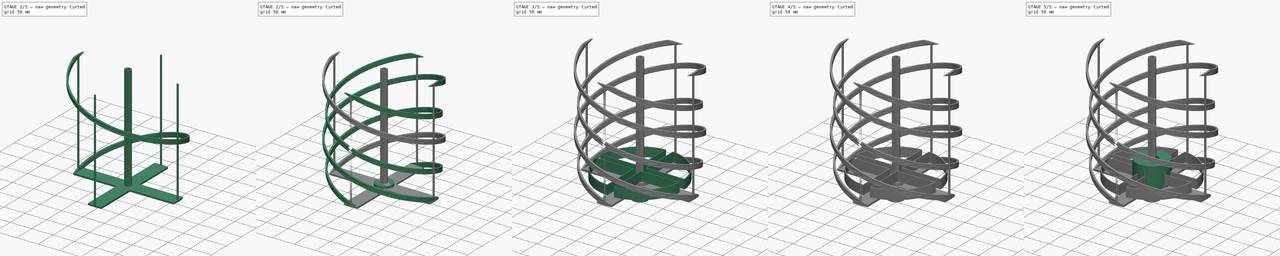
[diagram: build sequence overview — one tinted view per stage of 5, left to right]
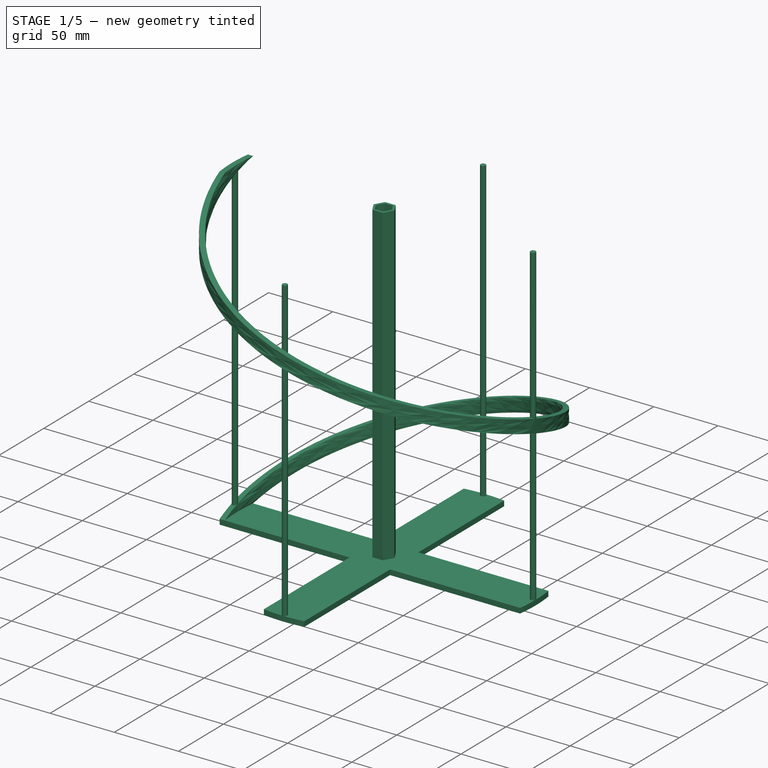
[diagram: stage 1 of 5 — iso view after this stage's code; geometry added in this stage tinted green]
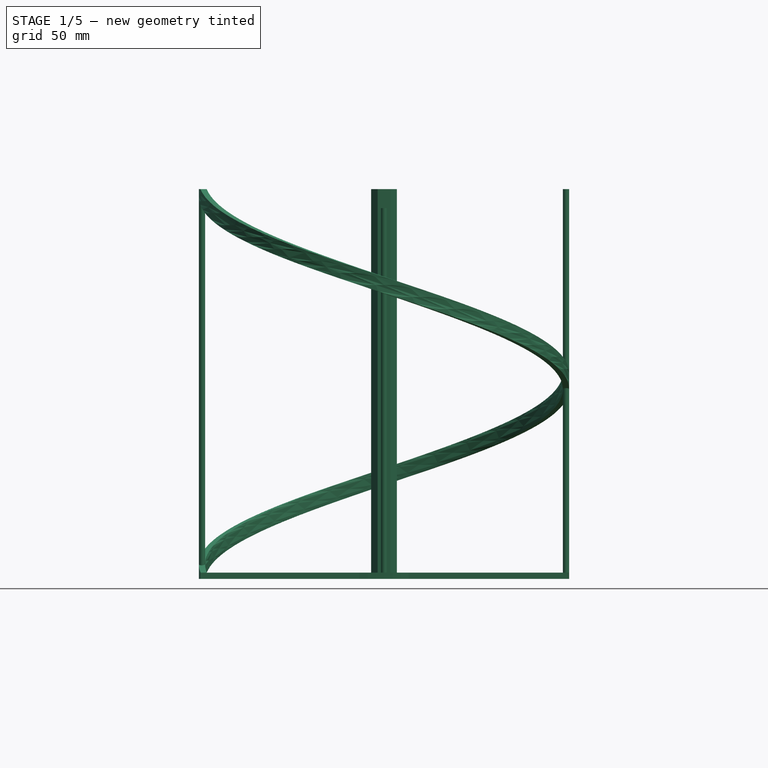
[diagram: stage 1 of 5 — front view after this stage's code; geometry added in this stage tinted green]
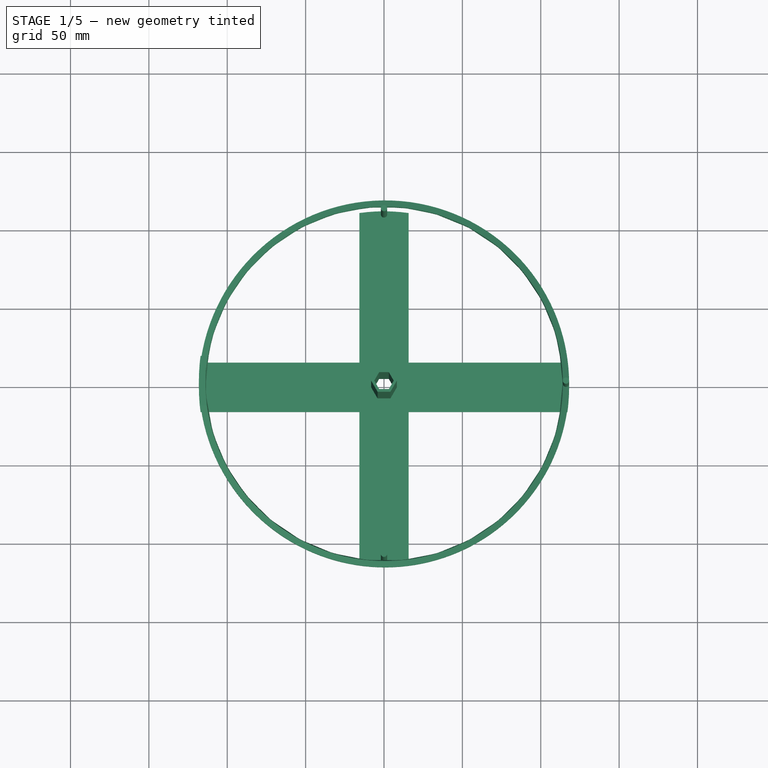
[diagram: stage 1 of 5 — top view after this stage's code; geometry added in this stage tinted green]
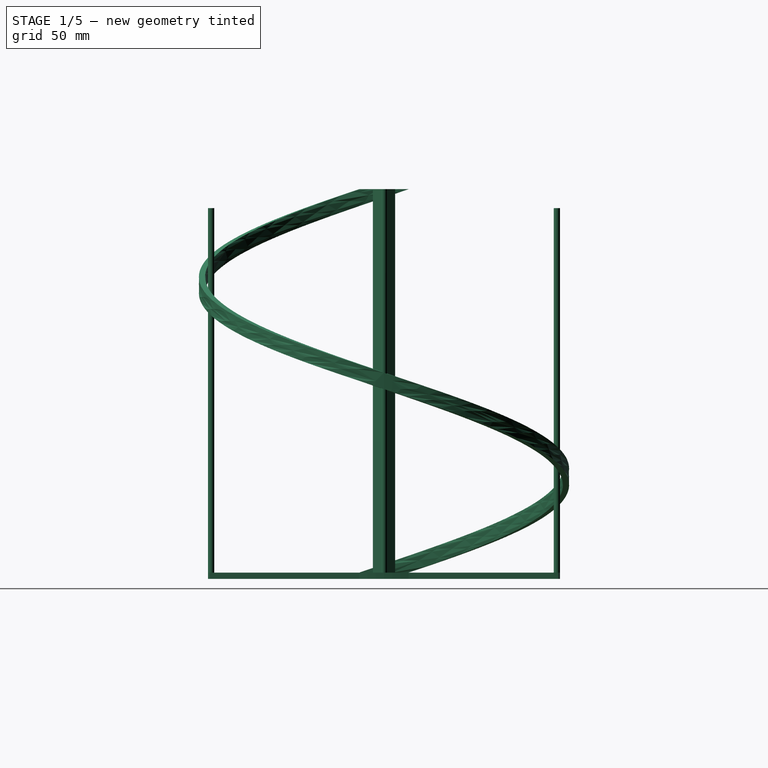
[diagram: stage 1 of 5 — right view after this stage's code; geometry added in this stage tinted green]
FCSTD DOCUMENT  (FreeCAD 0.21R33771 (Git))
Label: QfhAntenna2m
License: All rights reserved
LicenseURL: http://en.wikipedia.org/wiki/All_rights_reserved
objects: Sketcher::SketchObject×13, PartDesign::Pad×8, PartDesign::PolarPattern×3, PartDesign::Pocket×3, PartDesign::Body×3, Spreadsheet::Sheet×2, PartDesign::Fillet×2, PartDesign::Chamfer×2, App::DocumentObjectGroup×2, PartDesign::AdditiveHelix×2, PartDesign::CoordinateSystem×1
note: 54 computed .brp shape members not serialized (recipe doc carries the construction recipe); baked Part::Feature solids carry a one-line shape summary decoded from their .brp

FEATURE [PartDesign::Body] Body008  label="Fork"
  Group = -> [Sketch014,Sketch015,Pad010,Pad011,PolarPattern,Sketch017,Fillet,LCS_7,Pad020,Chamfer,Fillet001,Chamfer001,Sketch036,Pocket004]
  Origin = -> Origin008
  Placement = pos=(0,-98.4,2.2e-14) rot=(-1,0,0;1.5708rad)
  Tip = -> Pocket004
FEATURE [App::DocumentObjectGroup] Group002  label="Support"
  Group = -> [Body008,Spreadsheet001,Body010]
FEATURE [Sketcher::SketchObject] Sketch
  FullyConstrained = true
  MapMode = 5
  Support = -> [XY_Plane]
  expr: Constraints[1] = Spreadsheet.helixBase
  expr: Constraints[25] = Spreadsheet.helixBase
  expr: Constraints[29] = Spreadsheet.D2Small
  expr: Constraints[4] = Spreadsheet.D1Large
  expr: Constraints[50] = 12.4
  sketch-geometry (19):
    g0: ArcOfCircle CenterX=0 CenterY=0 CenterZ=0 NormalX=0 NormalY=0 NormalZ=1 AngleXU=0 Radius=118.1 StartAngle=3.00792 EndAngle=3.27527
    g1: ArcOfCircle CenterX=0 CenterY=0 CenterZ=0 NormalX=0 NormalY=0 NormalZ=1 AngleXU=0 Radius=118.1 StartAngle=6.14951 EndAngle=6.41686
    g2: ArcOfCircle CenterX=0 CenterY=0 CenterZ=0 NormalX=0 NormalY=0 NormalZ=1 AngleXU=0 Radius=112.3 StartAngle=1.43018 EndAngle=1.71142
    g3: ArcOfCircle CenterX=0 CenterY=0 CenterZ=0 NormalX=0 NormalY=0 NormalZ=1 AngleXU=0 Radius=112.3 StartAngle=4.57177 EndAngle=4.85301
    g4: LineSegment StartX=-117.046 StartY=15.7397 StartZ=0 EndX=-15.7397 EndY=15.7397 EndZ=0
    g5: LineSegment StartX=-15.7397 StartY=15.7397 StartZ=0 EndX=-15.7397 EndY=111.192 EndZ=0
    g6: LineSegment StartX=15.7397 StartY=111.192 StartZ=0 EndX=15.7397 EndY=15.7397 EndZ=0
    g7: LineSegment StartX=15.7397 StartY=15.7397 StartZ=0 EndX=117.046 EndY=15.7397 EndZ=0
    g8: LineSegment StartX=117.046 StartY=-15.7397 StartZ=0 EndX=15.7397 EndY=-15.7397 EndZ=0
    g9: LineSegment StartX=15.7397 StartY=-15.7397 StartZ=0 EndX=15.7397 EndY=-111.192 EndZ=0
    g10: LineSegment StartX=-117.046 StartY=-15.7397 StartZ=0 EndX=-15.7397 EndY=-15.7397 EndZ=0
    g11: LineSegment StartX=-15.7397 StartY=-15.7397 StartZ=0 EndX=-15.7397 EndY=-111.192 EndZ=0
    g12: LineSegment StartX=3.1 StartY=-5.36936 StartZ=0 EndX=6.2 EndY=2e-15 EndZ=0
    g13: LineSegment StartX=6.2 StartY=1.5e-15 StartZ=0 EndX=3.1 EndY=5.36936 EndZ=0
    g14: LineSegment StartX=3.1 StartY=5.36936 StartZ=0 EndX=-3.1 EndY=5.36936 EndZ=0
    g15: LineSegment StartX=-3.1 StartY=5.36936 StartZ=0 EndX=-6.2 EndY=2e-16 EndZ=0
    g16: LineSegment StartX=-6.2 StartY=3e-16 StartZ=0 EndX=-3.1 EndY=-5.36936 EndZ=0
    g17: LineSegment StartX=-3.1 StartY=-5.36936 StartZ=0 EndX=3.1 EndY=-5.36936 EndZ=0
    g18: Circle CenterX=0 CenterY=0 CenterZ=0 NormalX=0 NormalY=0 NormalZ=1 AngleXU=0 Radius=6.2
  constraints (48):
    c: Coincident(g0,g-1)
    c: DistanceY(g0,g0) = 31.4795
    c: Horizontal(g0,g1)
    c: Symmetric(g0,g1,g-2)
    c: Distance(g0,g1) = 236.2
    c: Coincident(g0,g1)
    c: Coincident(g2,g0)
    c: Coincident(g3,g0)
    c: Symmetric(g2,g3,g-1)
    c: Vertical(g3,g2)
    c: Coincident(g4,g0)
    c: Horizontal(g4)
    c: Coincident(g5,g4)
    c: Coincident(g5,g2)
    c: Coincident(g6,g2)
    c: Vertical(g6)
    c: Coincident(g7,g6)
    c: Coincident(g7,g1)
    c: Coincident(g8,g1)
    c: Coincident(g9,g8)
    c: Coincident(g9,g3)
    c: Vertical(g9)
    c: Coincident(g10,g0)
    c: Coincident(g11,g10)
    c: Coincident(g11,g3)
    c: DistanceX(g2,g2) = 31.4795
    c: Perpendicular(g5,g4)
    c: Perpendicular(g11,g10)
    c: Perpendicular(g8,g9)
    c: Distance(g2,g3) = 224.6
    c: Symmetric(g4,g6,g-2)
    c: Symmetric(g4,g10,g-1)
    c: Coincident(g12,g13)
    c: Coincident(g13,g14)
    c: Coincident(g14,g15)
    c: Coincident(g15,g16)
    c: Coincident(g16,g17)
    c: Coincident(g17,g12)
    c: Equal(g12, g13-g17) x5
    c: PointOnObject(g12,g18)
    c: PointOnObject(g13,g18)
    c: PointOnObject(g14,g18)
    c: PointOnObject(g15,g18)
    c: PointOnObject(g16,g18)
    c: PointOnObject(g17,g18)
    c: Coincident(g18,g0)
    c: Diameter(g18) = 12.4
    c: Horizontal(g17)
FEATURE [PartDesign::Pad] Pad  label="BaseTop"
  Direction = (0,0,1)
  Length = 4
  Length2 = 10
  Profile = -> Sketch
  ReferenceAxis = -> Sketch [N_Axis]
  Type = 0
  expr: Length = Spreadsheet.helixThickness
FEATURE [Sketcher::SketchObject] Sketch046
  ExternalGeometry = -> [Pad]
  FullyConstrained = true
  MapMode = 5
  Placement = pos=(0,0,4) rot=(0,0,1;0rad)
  Support = -> [Pad]
  expr: Constraints[2] = Spreadsheet.D1Large - Spreadsheet.helixThickness
  expr: Constraints[4] = Spreadsheet.helixThickness
  sketch-geometry (16):
    g0: Circle CenterX=-116.1 CenterY=0 CenterZ=0 NormalX=0 NormalY=0 NormalZ=1 AngleXU=0 Radius=2
    g1: Circle CenterX=116.1 CenterY=0 CenterZ=0 NormalX=0 NormalY=0 NormalZ=1 AngleXU=0 Radius=2
    g2: LineSegment StartX=3.1 StartY=5.36936 StartZ=0 EndX=-3.1 EndY=5.36936 EndZ=0
    g3: LineSegment StartX=-3.1 StartY=5.36936 StartZ=0 EndX=-6.2 EndY=-3.01e-14 EndZ=0
    g4: LineSegment StartX=-6.2 StartY=-3.01e-14 StartZ=0 EndX=-3.1 EndY=-5.36936 EndZ=0
    g5: LineSegment StartX=-3.1 StartY=-5.36936 StartZ=0 EndX=3.1 EndY=-5.36936 EndZ=0
    g6: LineSegment StartX=3.1 StartY=-5.36936 StartZ=0 EndX=6.2 EndY=3.02e-14 EndZ=0
    g7: LineSegment StartX=6.2 StartY=3.02e-14 StartZ=0 EndX=3.1 EndY=5.36936 EndZ=0
    g8: Circle CenterX=0 CenterY=0 CenterZ=0 NormalX=0 NormalY=0 NormalZ=1 AngleXU=0 Radius=6.2
    g9: LineSegment StartX=4.1 StartY=7.10141 StartZ=0 EndX=-4.1 EndY=7.10141 EndZ=0
    g10: LineSegment StartX=-4.1 StartY=7.10141 StartZ=0 EndX=-8.2 EndY=-1.4e-15 EndZ=0
    g11: LineSegment StartX=-8.2 StartY=-1.4e-15 StartZ=0 EndX=-4.1 EndY=-7.10141 EndZ=0
    g12: LineSegment StartX=-4.1 StartY=-7.10141 StartZ=0 EndX=4.1 EndY=-7.10141 EndZ=0
    g13: LineSegment StartX=4.1 StartY=-7.10141 StartZ=0 EndX=8.2 EndY=2.2e-15 EndZ=0
    g14: LineSegment StartX=8.2 StartY=2.2e-15 StartZ=0 EndX=4.1 EndY=7.10141 EndZ=0
    g15: Circle CenterX=0 CenterY=0 CenterZ=0 NormalX=0 NormalY=0 NormalZ=1 AngleXU=0 Radius=8.2
  constraints (36):
    c: PointOnObject(g0,g-1)
    c: Symmetric(g0,g1,g-2)
    c: DistanceX(g0,g1) = 232.2
    c: Equal(g1,g0)
    c: Diameter(g1) = 4
    c: Coincident(g2,g3)
    c: Coincident(g3,g4)
    c: Coincident(g4,g5)
    c: Coincident(g5,g6)
    c: Coincident(g6,g7)
    c: Coincident(g7,g2)
    c: Equal(g2, g3-g7) x5
    c: PointOnObject(g2,g8)
    c: PointOnObject(g3,g8)
    c: PointOnObject(g4,g8)
    c: PointOnObject(g5,g8)
    c: PointOnObject(g6,g8)
    c: PointOnObject(g7,g8)
    c: Coincident(g8,g-1)
    c: Coincident(g7,g-3)
    c: Coincident(g9,g10)
    c: Coincident(g10,g11)
    c: Coincident(g11,g12)
    c: Coincident(g12,g13)
    c: Coincident(g13,g14)
    c: Coincident(g14,g9)
    c: Equal(g9, g10-g14) x5
    c: PointOnObject(g9,g15)
    c: PointOnObject(g10,g15)
    c: PointOnObject(g11,g15)
    c: PointOnObject(g12,g15)
    c: PointOnObject(g13,g15)
    c: PointOnObject(g14,g15)
    c: Coincident(g15,g8)
    c: Horizontal(g9)
    c: DistanceX(g5,g12) = 1
FEATURE [PartDesign::Pad] Pad036  label="LargeSupport"
  BaseFeature = -> Pad
  Direction = (0,0,1)
  Length = 244.6
  Length2 = 10
  Profile = -> Sketch046
  ReferenceAxis = -> Sketch046 [N_Axis]
  Type = 0
  expr: Length = Spreadsheet.H1Large - Spreadsheet.helixThickness
FEATURE [Sketcher::SketchObject] Sketch047
  FullyConstrained = true
  MapMode = 5
  Placement = pos=(0,0,4) rot=(0,0,1;0rad)
  Support = -> [Pad036]
  expr: Constraints[2] = Spreadsheet.D2Small - Spreadsheet.helixThickness
  expr: Constraints[4] = Spreadsheet.helixThickness
  sketch-geometry (2):
    g0: Circle CenterX=0 CenterY=110.3 CenterZ=0 NormalX=0 NormalY=0 NormalZ=1 AngleXU=0 Radius=2
    g1: Circle CenterX=0 CenterY=-110.3 CenterZ=0 NormalX=0 NormalY=0 NormalZ=1 AngleXU=0 Radius=2
  constraints (5):
    c: PointOnObject(g0,g-2)
    c: Symmetric(g0,g1,g-1)
    c: DistanceY(g1,g0) = 220.6
    c: Equal(g0,g1)
    c: Diameter(g0) = 4
FEATURE [PartDesign::Pad] Pad037  label="SmallSupport"
  BaseFeature = -> Pad036
  Direction = (0,0,1)
  Length = 232.5
  Length2 = 10
  Profile = -> Sketch047
  ReferenceAxis = -> Sketch047 [N_Axis]
  Type = 0
  expr: Length = Spreadsheet.H2Small - Spreadsheet.helixThickness
FEATURE [Sketcher::SketchObject] Sketch048
  ExternalGeometry = -> [Pad037]
  FullyConstrained = false
  MapMode = 5
  Placement = pos=(0,0,4) rot=(0,0,1;0rad)
  Support = -> [Pad037]
  expr: Constraints[5] = Spreadsheet.helixThickness
  sketch-geometry (4):
    g0: ArcOfCircle CenterX=0 CenterY=0 CenterZ=0 NormalX=0 NormalY=0 NormalZ=1 AngleXU=0 Radius=118.1 StartAngle=3.00792 EndAngle=3.27527
    g1: ArcOfCircle CenterX=24.0841 CenterY=0 CenterZ=0 NormalX=0 NormalY=0 NormalZ=1 AngleXU=0 Radius=138.031 StartAngle=3.02731 EndAngle=3.25587
    g2: LineSegment StartX=-113.046 StartY=15.7397 StartZ=0 EndX=-117.046 EndY=15.7397 EndZ=0
    g3: LineSegment StartX=-117.046 StartY=-15.7397 StartZ=0 EndX=-113.046 EndY=-15.7397 EndZ=0
  constraints (11):
    c: Coincident(g0,g-4)
    c: Coincident(g0,g-3)
    c: PointOnObject(g1,g-1)
    c: PointOnObject(g1,g-5)
    c: PointOnObject(g1,g-6)
    c: DistanceX(g0,g1) = 4
    c: Coincident(g2,g1)
    c: Coincident(g3,g0)
    c: Coincident(g3,g1)
    c: Horizontal(g3)
    c: Coincident(g2,g0)
FEATURE [PartDesign::AdditiveHelix] AdditiveHelix  label="LargeHelixA"
  Angle = 0
  Axis = (1e-16,1e-16,1)
  Base = (0,0,0)
  BaseFeature = -> Pad037
  Growth = 0
  HasBeenEdited = true
  Height = 244.6
  LeftHanded = true
  Mode = 2
  Outside = false
  Pitch = 244.6
  Profile = -> Sketch048
  ReferenceAxis = -> Z_Axis
  Turns = 1
  expr: Height = Spreadsheet.H1Large - Spreadsheet.helixThickness
  expr: Turns = Spreadsheet.turns
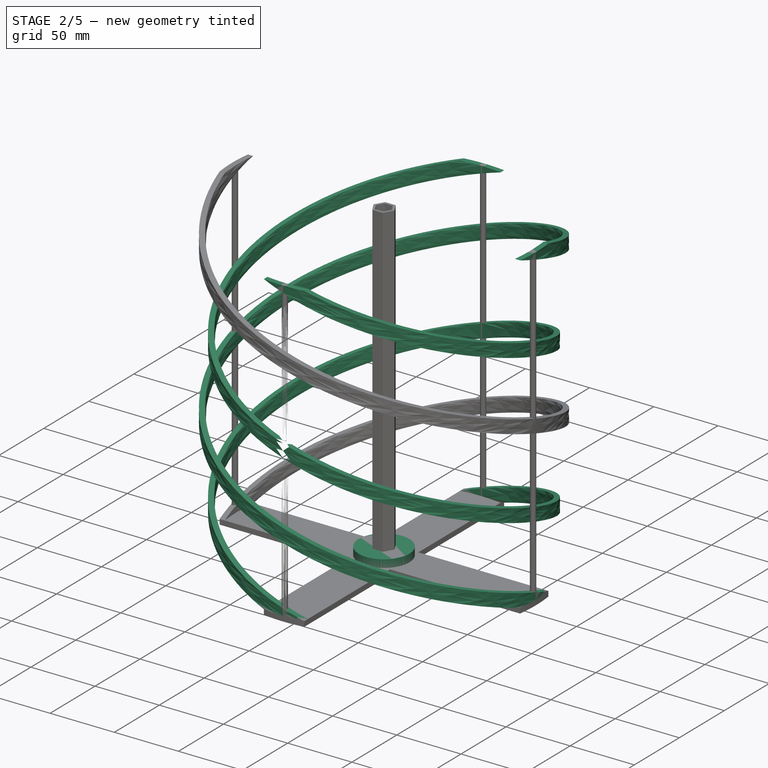
[diagram: stage 2 of 5 — iso view after this stage's code; geometry added in this stage tinted green]
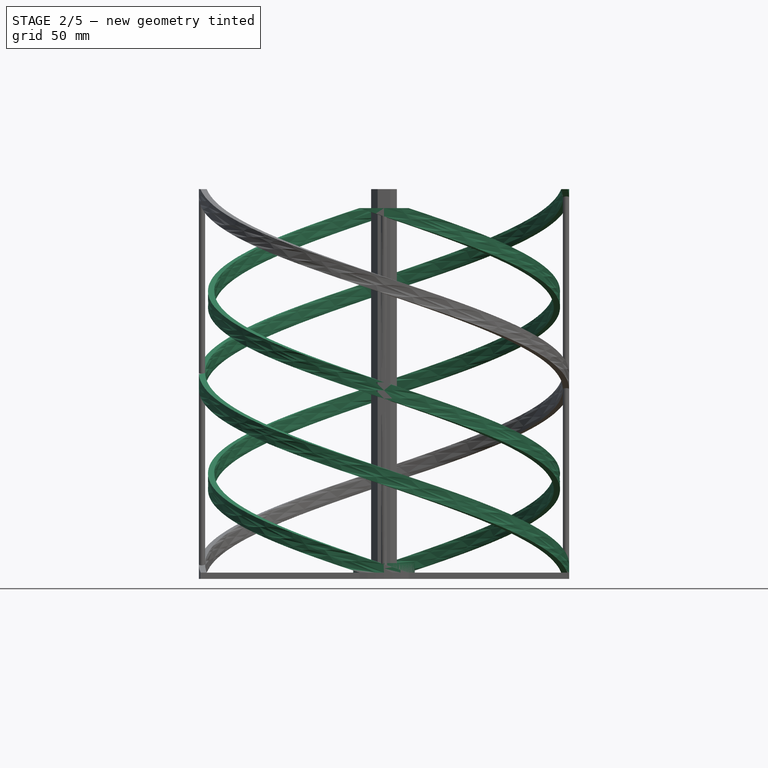
[diagram: stage 2 of 5 — front view after this stage's code; geometry added in this stage tinted green]
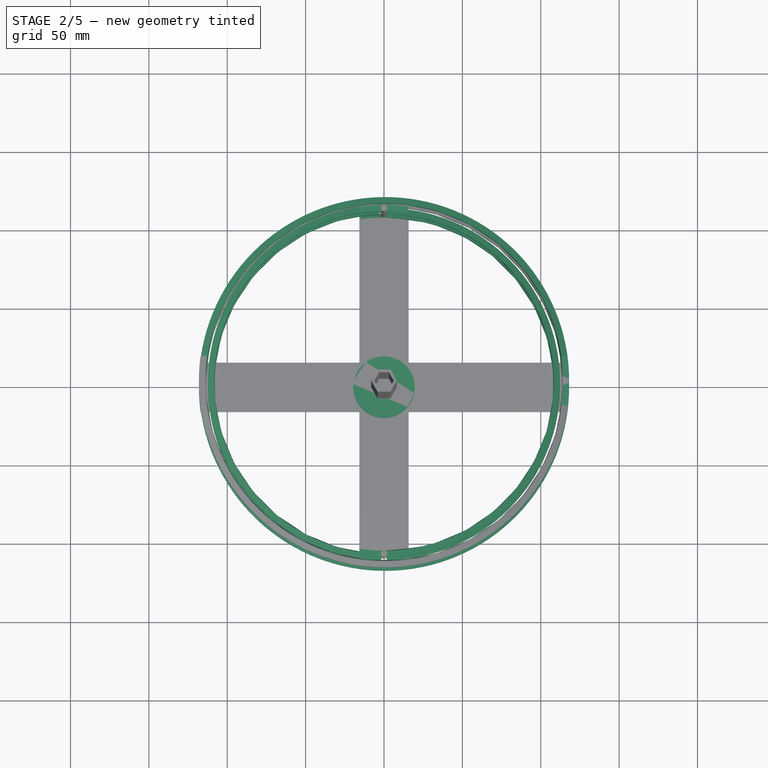
[diagram: stage 2 of 5 — top view after this stage's code; geometry added in this stage tinted green]
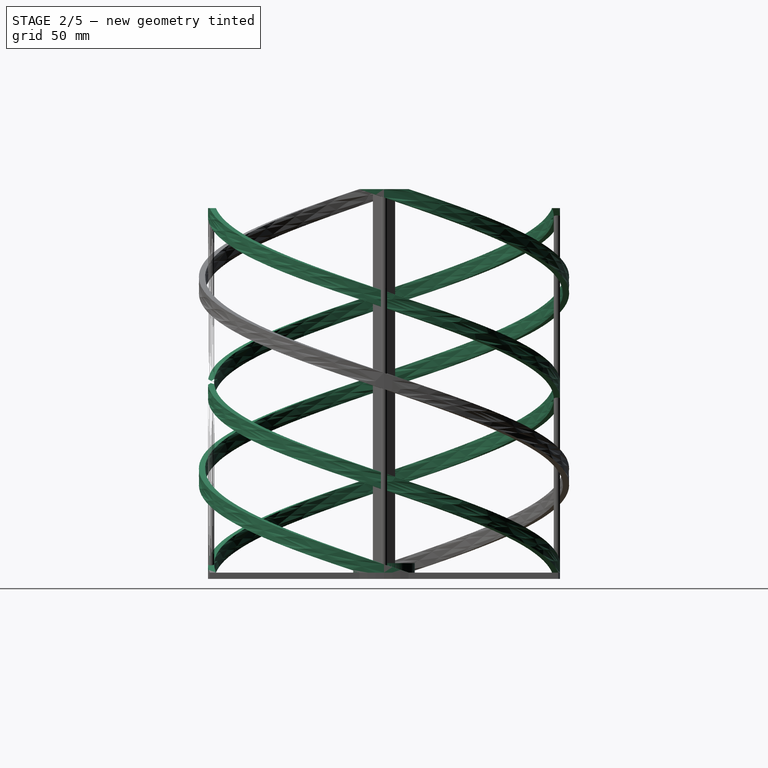
[diagram: stage 2 of 5 — right view after this stage's code; geometry added in this stage tinted green]
FEATURE [Spreadsheet::Sheet] Spreadsheet  label="NumbersForRight"
  cells = B1='Info; C1='https://jcoppens.com/ant/qfh/calc.en.php; A2='#turns; B2(turns)=1; A3='H1; B3(H1Large)=248.6; C3='@145; A4='D1; B4(D1Large)=236.2; A5='H2; B5(H2Small)=236.5; A6='D2; B6(D2Small)=224.6; A7='margin; B7(margin)=0.2; A8='widthFoil; B8(widthFoil)=10; A9='helixThickness; B9(helixThickness)=4; A10='heightSmall; B10(heightSmall)==H1Large - H2Small - helixThickness; C10='Padding to hold small helix between large; A11='radiusCenter; B11(radiusCenter)=6; A12='direction; B12(direction)=0; A13='helixElevation; B13(helixElevation)==atan(H1Large / (pi * D1Large)); A14='helixBase; B14(helixBase)==widthFoil / sin(helixElevation); B15='Calculated; C15='Do not change
FEATURE [Sketcher::SketchObject] Sketch015
  FullyConstrained = true
  MapMode = 5
  Support = -> [XY_Plane008]
  sketch-geometry (1):
    g0: Circle CenterX=0 CenterY=0 CenterZ=0 NormalX=0 NormalY=0 NormalZ=1 AngleXU=0 Radius=19.65
  constraints (2):
    c: Radius(g0) = 19.65
    c: Coincident(g0,g-1)
FEATURE [PartDesign::Pad] Pad010
  Direction = (0,0,1)
  Length = 10
  Length2 = 10
  Profile = -> Sketch015
  ReferenceAxis = -> Sketch015 [N_Axis]
  Type = 0
FEATURE [PartDesign::PolarPattern] PolarPattern001  label="LargeHelixB"
  Angle = 360
  Axis = -> Sketch048 [N_Axis]
  BaseFeature = -> AdditiveHelix
  Occurrences = 2
  Originals = -> [AdditiveHelix]
FEATURE [Sketcher::SketchObject] Sketch049
  ExternalGeometry = -> [PolarPattern001]
  FullyConstrained = true
  MapMode = 5
  Placement = pos=(0,0,4) rot=(0,0,1;0rad)
  Support = -> [PolarPattern001]
  expr: Constraints[5] = Spreadsheet.helixThickness
  sketch-geometry (4):
    g0: ArcOfCircle CenterX=0 CenterY=0 CenterZ=0 NormalX=0 NormalY=0 NormalZ=1 AngleXU=0 Radius=112.3 StartAngle=4.57177 EndAngle=4.85301
    g1: ArcOfCircle CenterX=0 CenterY=0 CenterZ=0 NormalX=0 NormalY=0 NormalZ=1 AngleXU=0 Radius=108.341 StartAngle=4.56659 EndAngle=4.85818
    g2: LineSegment StartX=15.7397 StartY=-111.192 StartZ=0 EndX=15.7397 EndY=-107.192 EndZ=0
    g3: LineSegment StartX=-15.7397 StartY=-111.192 StartZ=0 EndX=-15.7397 EndY=-107.192 EndZ=0
  constraints (11):
    c: Coincident(g0,g-5)
    c: Coincident(g0,g-5)
    c: Coincident(g1,g0)
    c: PointOnObject(g1,g-3)
    c: PointOnObject(g1,g-4)
    c: DistanceY(g0,g1) = 4
    c: Coincident(g2,g0)
    c: Coincident(g2,g1)
    c: Coincident(g3,g0)
    c: Coincident(g3,g1)
    c: Vertical(g3)
FEATURE [PartDesign::AdditiveHelix] AdditiveHelix001  label="SmallHelixA"
  Angle = 0
  Axis = (1e-16,1e-16,1)
  Base = (0,0,0)
  BaseFeature = -> PolarPattern001
  Growth = 0
  HasBeenEdited = true
  Height = 232.5
  LeftHanded = true
  Mode = 2
  Outside = false
  Pitch = 232.5
  Profile = -> Sketch049
  ReferenceAxis = -> Z_Axis
  Turns = 1
  expr: Height = Spreadsheet.H2Small - Spreadsheet.helixThickness
  expr: Turns = Spreadsheet.turns
FEATURE [PartDesign::PolarPattern] PolarPattern002
  Angle = 360
  Axis = -> Sketch049 [N_Axis]
  BaseFeature = -> AdditiveHelix001
  Occurrences = 2
  Originals = -> [AdditiveHelix001]
FEATURE [PartDesign::Body] Body  label="HelixLargeSupport"
  Group = -> [Sketch,Pad,Sketch046,Pad036,Sketch047,Pad037,Sketch048,AdditiveHelix,PolarPattern001,Sketch049,AdditiveHelix001,PolarPattern002]
  Origin = -> Origin
  Tip = -> PolarPattern002
FEATURE [App::DocumentObjectGroup] Group  label="Antenna"
  Group = -> [Body]
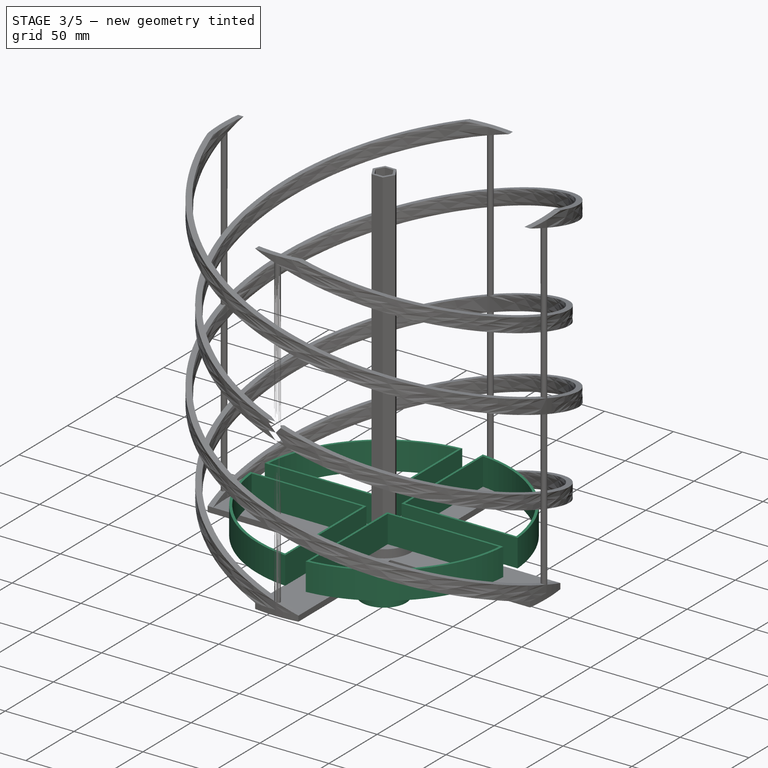
[diagram: stage 3 of 5 — iso view after this stage's code; geometry added in this stage tinted green]
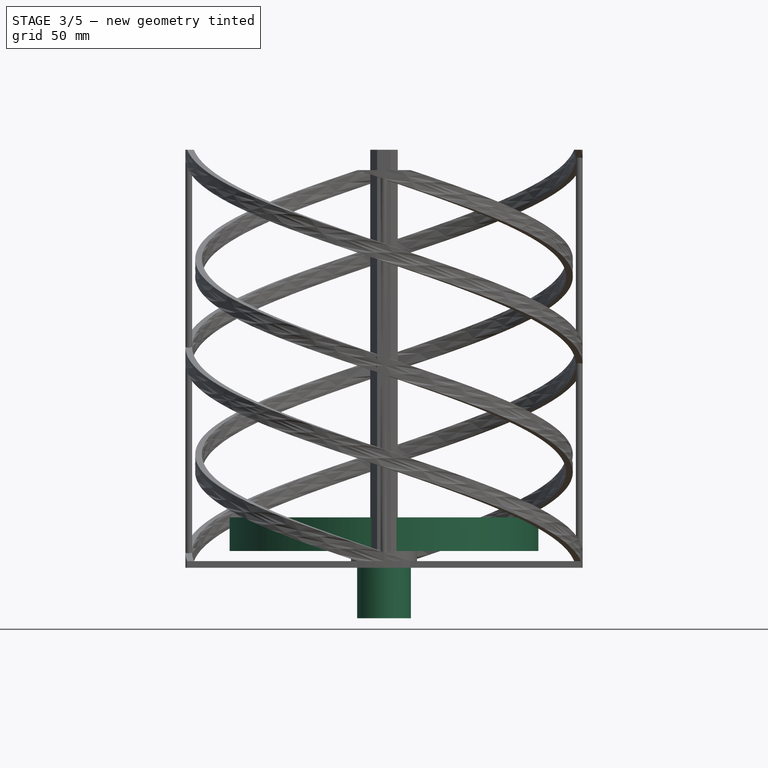
[diagram: stage 3 of 5 — front view after this stage's code; geometry added in this stage tinted green]
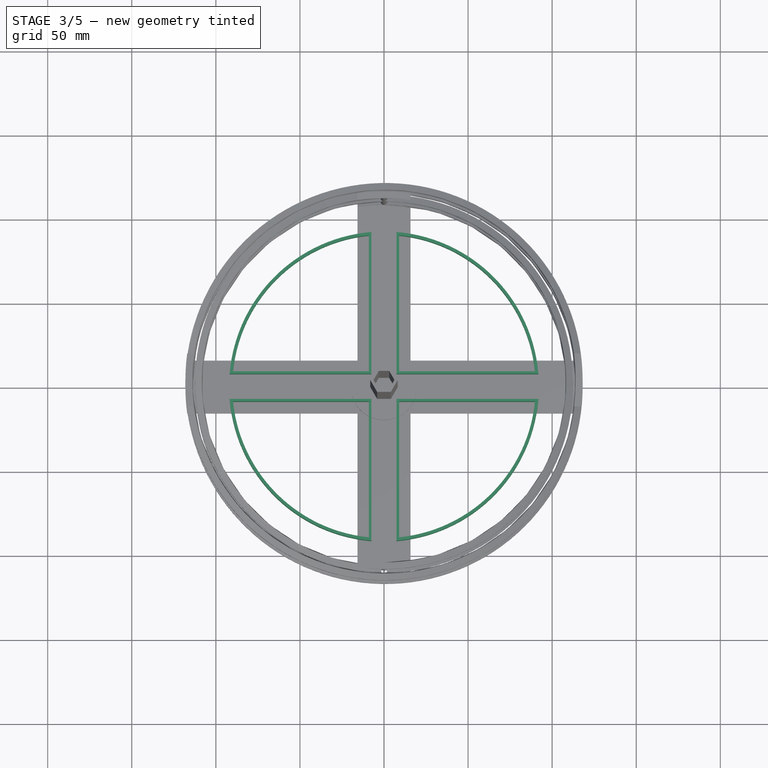
[diagram: stage 3 of 5 — top view after this stage's code; geometry added in this stage tinted green]
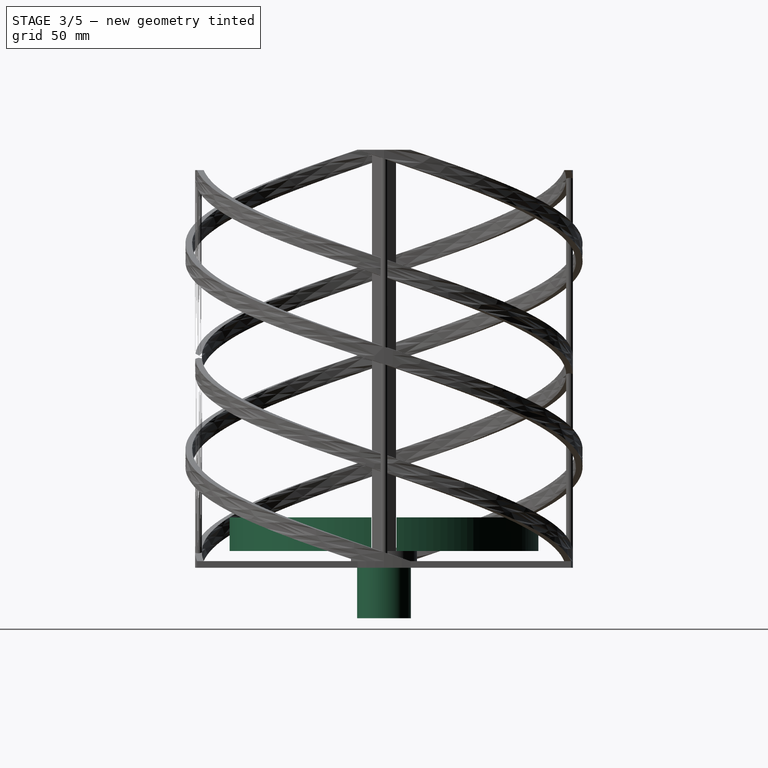
[diagram: stage 3 of 5 — right view after this stage's code; geometry added in this stage tinted green]
FEATURE [Sketcher::SketchObject] Sketch014
  FullyConstrained = true
  MapMode = 5
  Placement = pos=(0,0,10) rot=(0,0,1;0rad)
  Support = -> [Pad010]
  expr: Constraints[11] = Spreadsheet.widthFoil * sqrt(2) + 4 * Spreadsheet.margin
  expr: Constraints[1] = Spreadsheet.D2Small / 2 - 2 * Spreadsheet.widthFoil - Spreadsheet.margin
  expr: Constraints[24] = Spreadsheet.widthFoil * sqrt(2) + 4 * Spreadsheet.margin
  sketch-geometry (11):
    g0: Circle CenterX=0 CenterY=0 CenterZ=0 NormalX=0 NormalY=0 NormalZ=1 AngleXU=0 Radius=92.1
    g1: LineSegment StartX=-7.47107 StartY=91.7965 StartZ=0 EndX=-7.47107 EndY=-91.7965 EndZ=0
    g2: LineSegment StartX=7.47107 StartY=91.7965 StartZ=0 EndX=7.47107 EndY=-91.7965 EndZ=0
    g3: LineSegment StartX=-91.7965 StartY=7.47107 StartZ=0 EndX=91.7965 EndY=7.47107 EndZ=0
    g4: LineSegment StartX=-91.7965 StartY=-7.47107 StartZ=0 EndX=91.7965 EndY=-7.47107 EndZ=0
    g5: ArcOfCircle CenterX=0 CenterY=0 CenterZ=0 NormalX=0 NormalY=0 NormalZ=1 AngleXU=0 Radius=92.1 StartAngle=0.0812083 EndAngle=1.48959
    g6: LineSegment StartX=7.47107 StartY=91.7965 StartZ=0 EndX=7.47107 EndY=7.47107 EndZ=0
    g7: LineSegment StartX=7.47107 StartY=7.47107 StartZ=0 EndX=91.7965 EndY=7.47107 EndZ=0
    g8: ArcOfCircle CenterX=0 CenterY=0 CenterZ=0 NormalX=0 NormalY=0 NormalZ=1 AngleXU=0 Radius=90.2435 StartAngle=0.099574 EndAngle=1.47122
    g9: LineSegment StartX=8.97107 StartY=89.7965 StartZ=0 EndX=8.97107 EndY=8.97107 EndZ=0
    g10: LineSegment StartX=8.97107 StartY=8.97107 StartZ=0 EndX=89.7965 EndY=8.97107 EndZ=0
  constraints (34):
    c: Coincident(g0,g-1)
    c: Radius(g0) = 92.1
    c: PointOnObject(g1,g0)
    c: Vertical(g1)
    c: PointOnObject(g2,g0)
    c: Vertical(g2)
    c: PointOnObject(g3,g0)
    c: Horizontal(g3)
    c: PointOnObject(g4,g0)
    c: PointOnObject(g4,g0)
    c: Horizontal(g4)
    c: DistanceX(g1,g2) = 14.9421
    c: Symmetric(g1,g2,g-2)
    c: Symmetric(g3,g4,g-1)
    c: PointOnObject(g1,g0)
    c: PointOnObject(g2,g0)
    c: Coincident(g5,g0)
    c: Coincident(g5,g2)
    c: Coincident(g5,g3)
    c: Coincident(g6,g5)
    c: Vertical(g6)
    c: PointOnObject(g6,g3)
    c: Coincident(g7,g6)
    c: Coincident(g7,g5)
    c: DistanceY(g4,g3) = 14.9421
    c: Coincident(g8,g5)
    c: Coincident(g8,g9)
    c: Coincident(g9,g10)
    c: Coincident(g10,g8)
    c: Horizontal(g10)
    c: Vertical(g9)
    c: DistanceY(g6,g9) = 1.5
    c: DistanceX(g6,g9) = 1.5
    c: DistanceY(g8,g5) = 2
FEATURE [PartDesign::Pad] Pad011
  BaseFeature = -> Pad010
  Direction = (0,0,1)
  Length = 20
  Length2 = 10
  Profile = -> Sketch014
  ReferenceAxis = -> Sketch014 [N_Axis]
  Type = 0
  expr: Length = Spreadsheet.helixThickness * 5
FEATURE [PartDesign::PolarPattern] PolarPattern
  Angle = 360
  Axis = -> Sketch014 [N_Axis]
  BaseFeature = -> Pad011
  Occurrences = 4
  Originals = -> [Pad011]
FEATURE [Sketcher::SketchObject] Sketch017
  FullyConstrained = true
  MapMode = 5
  Placement = pos=(0,0,0) rot=(1,0,0;3.14159rad)
  Support = -> [PolarPattern]
  sketch-geometry (2):
    g0: Circle CenterX=0 CenterY=0 CenterZ=0 NormalX=0 NormalY=0 NormalZ=1 AngleXU=0 Radius=14
    g1: Circle CenterX=0 CenterY=0 CenterZ=0 NormalX=0 NormalY=0 NormalZ=1 AngleXU=0 Radius=16
  constraints (4):
    c: Coincident(g0,g-1)
    c: Coincident(g1,g0)
    c: Radius(g0) = 14
    c: Radius(g1) = 16
FEATURE [PartDesign::Fillet] Fillet
  Base = -> PolarPattern
  BaseFeature = -> PolarPattern
  Radius = 1
  SupportTransform = false
  UseAllEdges = false
FEATURE [PartDesign::Body] Body010  label="Insert"
  Group = -> [Sketch018,Pad013,Sketch019,Pocket002,Sketch020,Pad014,Sketch021,Pocket003]
  Origin = -> Origin010
  Placement = pos=(-6e-15,-199.6,0) rot=(-0.998099,-0.043578,-0.043578;1.5727rad)
  Tip = -> Pocket003
FEATURE [PartDesign::CoordinateSystem] LCS_7
  AttacherType = Attacher::AttachEngine3D
FEATURE [PartDesign::Pad] Pad020
  BaseFeature = -> Fillet
  Direction = (0,0,-1)
  Length = 30
  Length2 = 10
  Profile = -> Sketch017
  ReferenceAxis = -> Sketch017 [N_Axis]
  Type = 0
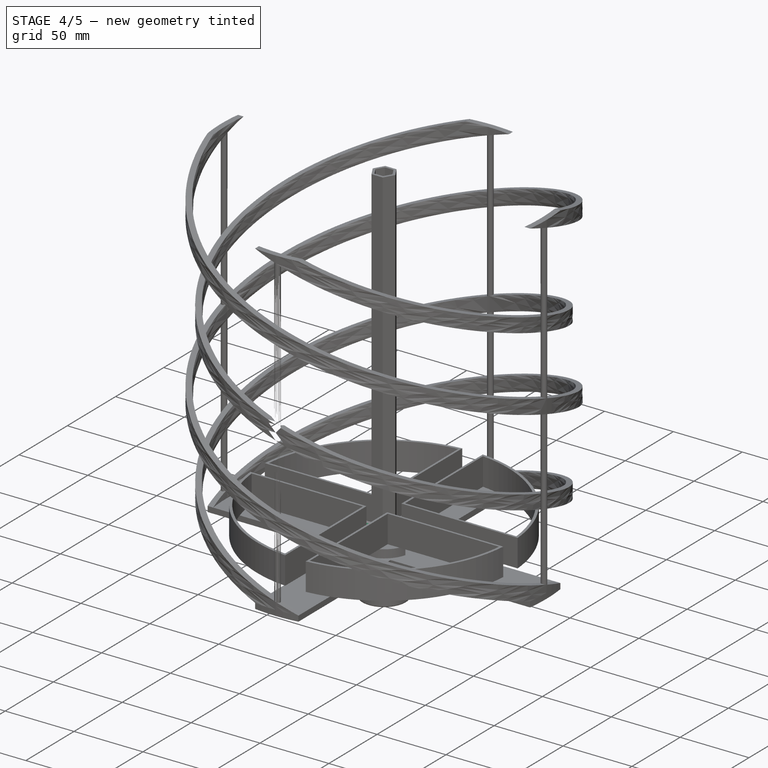
[diagram: stage 4 of 5 — iso view after this stage's code; geometry added in this stage tinted green]
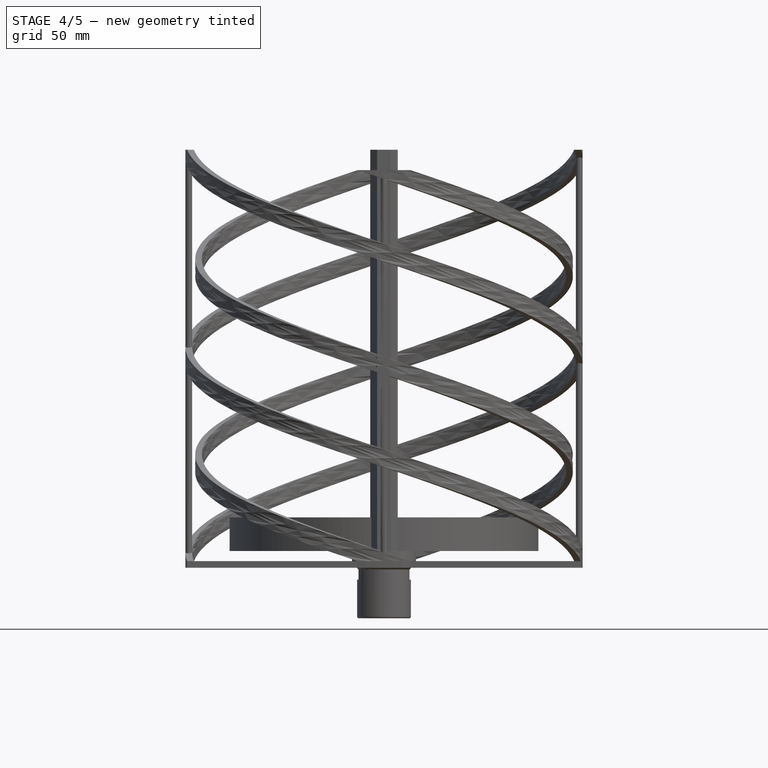
[diagram: stage 4 of 5 — front view after this stage's code; geometry added in this stage tinted green]
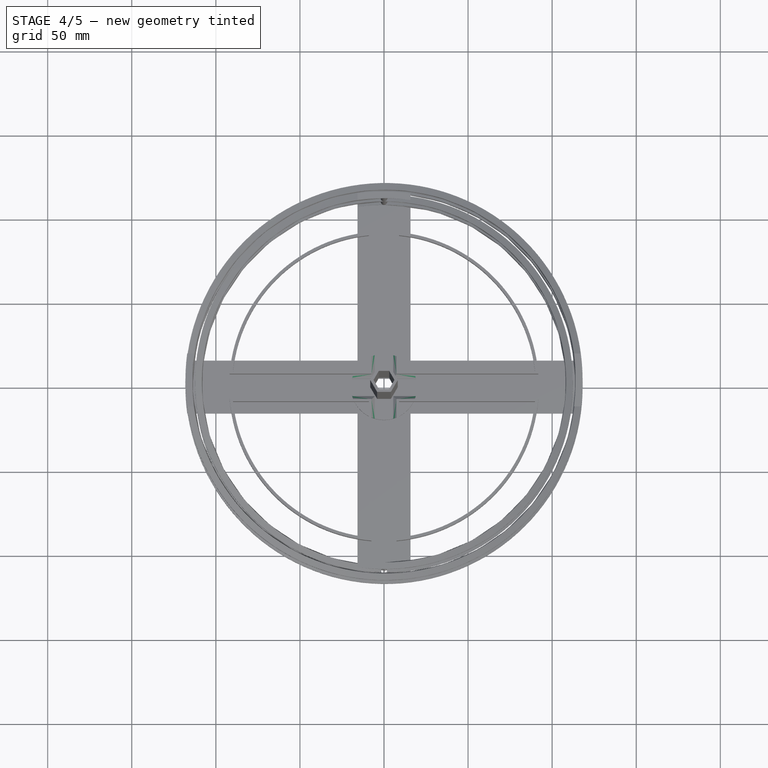
[diagram: stage 4 of 5 — top view after this stage's code; geometry added in this stage tinted green]
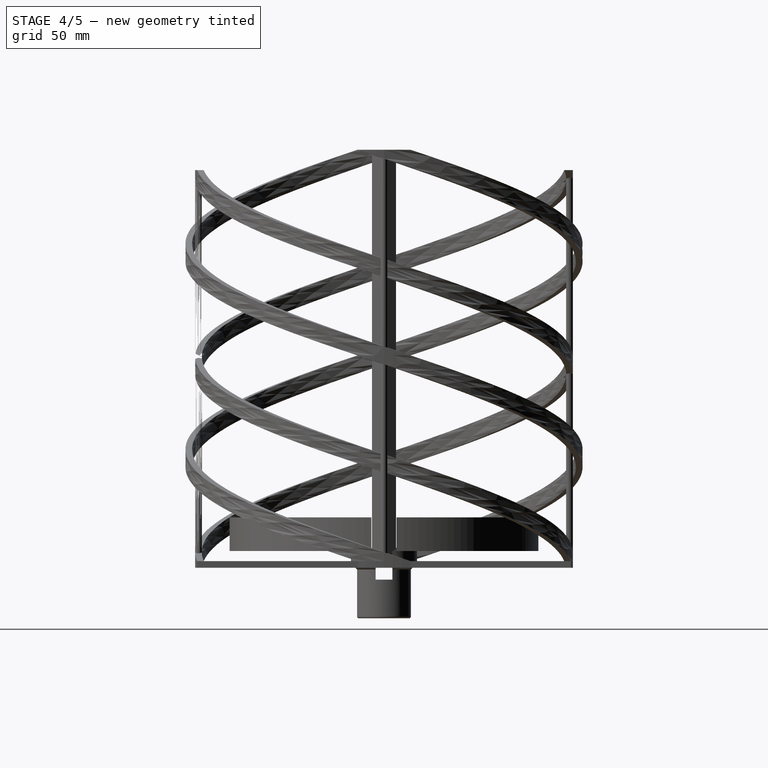
[diagram: stage 4 of 5 — right view after this stage's code; geometry added in this stage tinted green]
FEATURE [PartDesign::Chamfer] Chamfer
  Angle = 45
  Base = -> Pad020 [Edge60]
  BaseFeature = -> Pad020
  ChamferType = 0
  FlipDirection = false
  Size = 1
  Size2 = 1
  SupportTransform = false
  UseAllEdges = false
FEATURE [PartDesign::Fillet] Fillet001
  Base = -> Chamfer [Edge2,Edge24]
  BaseFeature = -> Chamfer
  Radius = 1
  SupportTransform = false
  UseAllEdges = false
FEATURE [PartDesign::Chamfer] Chamfer001
  Angle = 45
  Base = -> Fillet001 [Edge32,Edge30,Edge29,Edge33,Edge28,Edge27,Edge31,Edge34]
  BaseFeature = -> Fillet001
  ChamferType = 0
  FlipDirection = false
  Size = 2
  Size2 = 1
  SupportTransform = false
  UseAllEdges = false
FEATURE [Sketcher::SketchObject] Sketch036
  ExternalGeometry = -> [Chamfer001]
  FullyConstrained = true
  MapMode = 5
  Placement = pos=(0,0,10) rot=(0,0,1;0rad)
  Support = -> [Chamfer001]
  sketch-geometry (4):
    g0: LineSegment StartX=-19.65 StartY=5 StartZ=0 EndX=19.65 EndY=5 EndZ=0
    g1: LineSegment StartX=19.65 StartY=5 StartZ=0 EndX=19.65 EndY=-5 EndZ=0
    g2: LineSegment StartX=19.65 StartY=-5 StartZ=0 EndX=-19.65 EndY=-5 EndZ=0
    g3: LineSegment StartX=-19.65 StartY=-5 StartZ=0 EndX=-19.65 EndY=5 EndZ=0
  constraints (10):
    c: Coincident(g0,g1)
    c: Coincident(g1,g2)
    c: Coincident(g2,g3)
    c: Coincident(g3,g0)
    c: Horizontal(g0)
    c: Vertical(g1)
    c: Symmetric(g2,g1,g-2)
    c: Vertical(g-3,g1)
    c: DistanceY(g1,g0) = 10
    c: Symmetric(g0,g2,g-1)
FEATURE [PartDesign::Pocket] Pocket004
  BaseFeature = -> Chamfer001
  Direction = (0,0,-1)
  Length = 17
  Length2 = 5
  Profile = -> Sketch036
  ReferenceAxis = -> Sketch036 [N_Axis]
  Type = 0
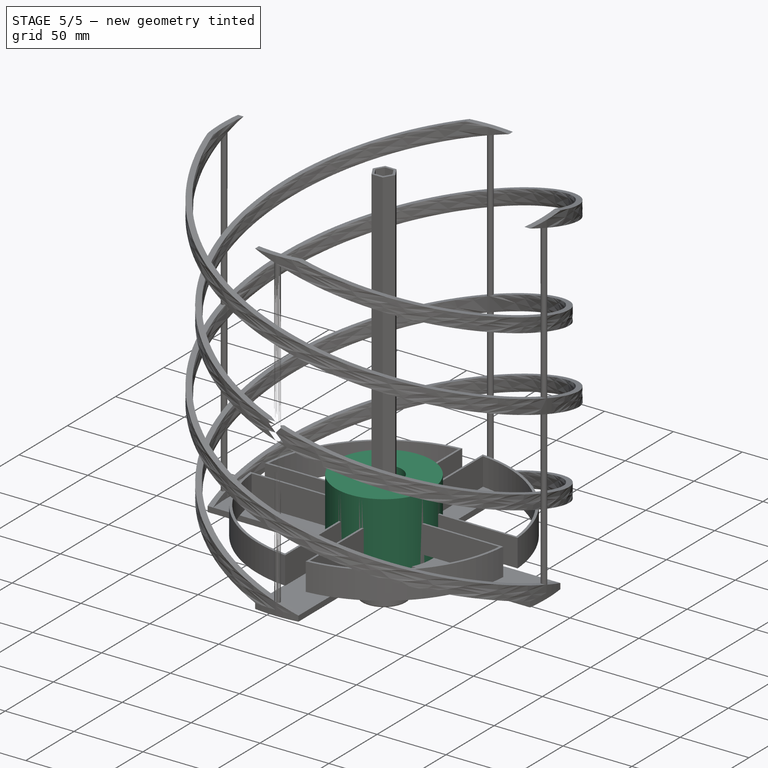
[diagram: stage 5 of 5 — iso view after this stage's code; geometry added in this stage tinted green]
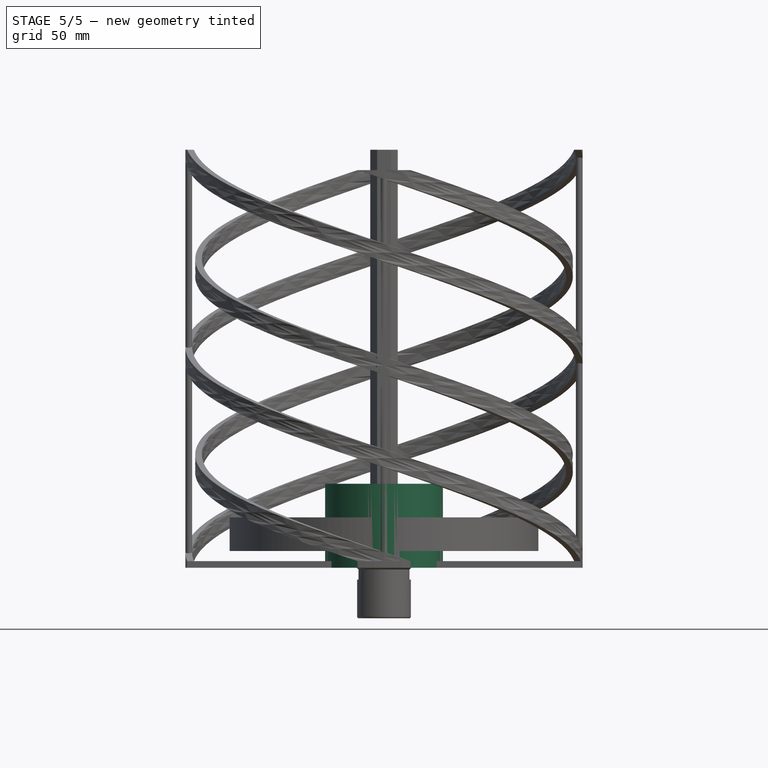
[diagram: stage 5 of 5 — front view after this stage's code; geometry added in this stage tinted green]
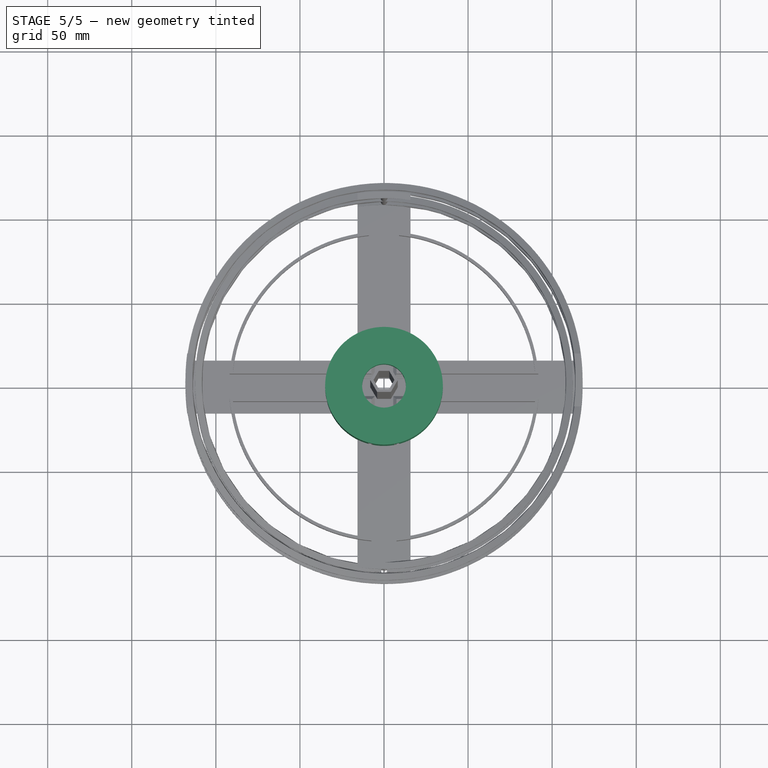
[diagram: stage 5 of 5 — top view after this stage's code; geometry added in this stage tinted green]
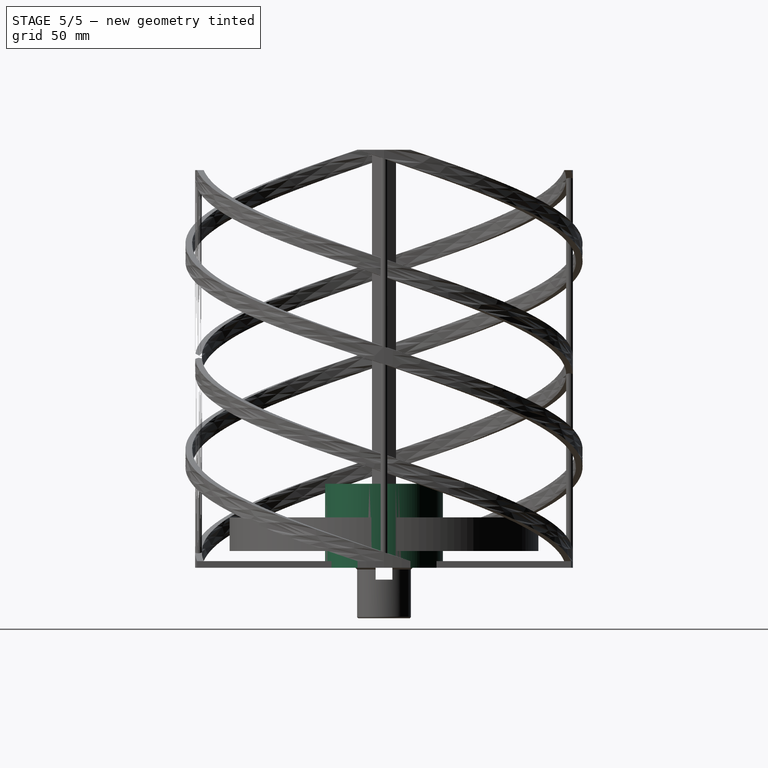
[diagram: stage 5 of 5 — right view after this stage's code; geometry added in this stage tinted green]
FEATURE [Sketcher::SketchObject] Sketch018
  FullyConstrained = true
  MapMode = 5
  Support = -> [XY_Plane010]
  expr: Constraints[1] = <<InsertSheet>>.r4
  sketch-geometry (1):
    g0: Circle CenterX=0 CenterY=0 CenterZ=0 NormalX=0 NormalY=0 NormalZ=1 AngleXU=0 Radius=35
  constraints (2):
    c: Coincident(g0,g-1)
    c: Radius(g0) = 35
FEATURE [Spreadsheet::Sheet] Spreadsheet001  label="InsertSheet"
  cells = A1='r1; B1(r1)=13; A2='r2; B2(r2)=28; A3='r3; B3(r3)==62 / 2; A4='r4; B4(r4)=35; A5='margin; B5(margin)=0.1; A6='height; B6(height)=50
FEATURE [PartDesign::Pad] Pad013
  Direction = (0,0,1)
  Length = 50
  Length2 = 10
  Profile = -> Sketch018
  ReferenceAxis = -> Sketch018 [N_Axis]
  Type = 0
  expr: Length = <<InsertSheet>>.height
FEATURE [Sketcher::SketchObject] Sketch019
  FullyConstrained = true
  MapMode = 5
  Placement = pos=(0,0,0) rot=(1,0,0;3.14159rad)
  Support = -> [Pad013]
  expr: Constraints[1] = <<InsertSheet>>.r3
  sketch-geometry (1):
    g0: Circle CenterX=0 CenterY=0 CenterZ=0 NormalX=0 NormalY=0 NormalZ=1 AngleXU=0 Radius=31
  constraints (2):
    c: Coincident(g0,g-1)
    c: Radius(g0) = 31
FEATURE [PartDesign::Pocket] Pocket002
  BaseFeature = -> Pad013
  Direction = (0,0,1)
  Length = 45
  Length2 = 5
  Profile = -> Sketch019
  ReferenceAxis = -> Sketch019 [N_Axis]
  Type = 0
  expr: Length = <<InsertSheet>>.height - 5
FEATURE [Sketcher::SketchObject] Sketch020
  FullyConstrained = true
  MapMode = 5
  Placement = pos=(0,0,45) rot=(1,0,0;3.14159rad)
  Support = -> [Pocket002]
  expr: Constraints[1] = <<InsertSheet>>.r2
  sketch-geometry (1):
    g0: Circle CenterX=0 CenterY=0 CenterZ=0 NormalX=0 NormalY=0 NormalZ=1 AngleXU=0 Radius=28
  constraints (2):
    c: Coincident(g0,g-1)
    c: Radius(g0) = 28
FEATURE [PartDesign::Pad] Pad014
  BaseFeature = -> Pocket002
  Direction = (0,0,-1)
  Length = 20
  Length2 = 10
  Profile = -> Sketch020
  ReferenceAxis = -> Sketch020 [N_Axis]
  Type = 0
FEATURE [Sketcher::SketchObject] Sketch021
  FullyConstrained = true
  MapMode = 5
  Placement = pos=(0,0,25) rot=(1,0,0;3.14159rad)
  Support = -> [Pad014]
  expr: Constraints[1] = <<InsertSheet>>.r1
  sketch-geometry (1):
    g0: Circle CenterX=0 CenterY=0 CenterZ=0 NormalX=0 NormalY=0 NormalZ=1 AngleXU=0 Radius=13
  constraints (2):
    c: Coincident(g0,g-1)
    c: Radius(g0) = 13
FEATURE [PartDesign::Pocket] Pocket003
  BaseFeature = -> Pad014
  Direction = (0,0,1)
  Length = 5
  Length2 = 5
  Profile = -> Sketch021
  ReferenceAxis = -> Sketch021 [N_Axis]
  Type = 1
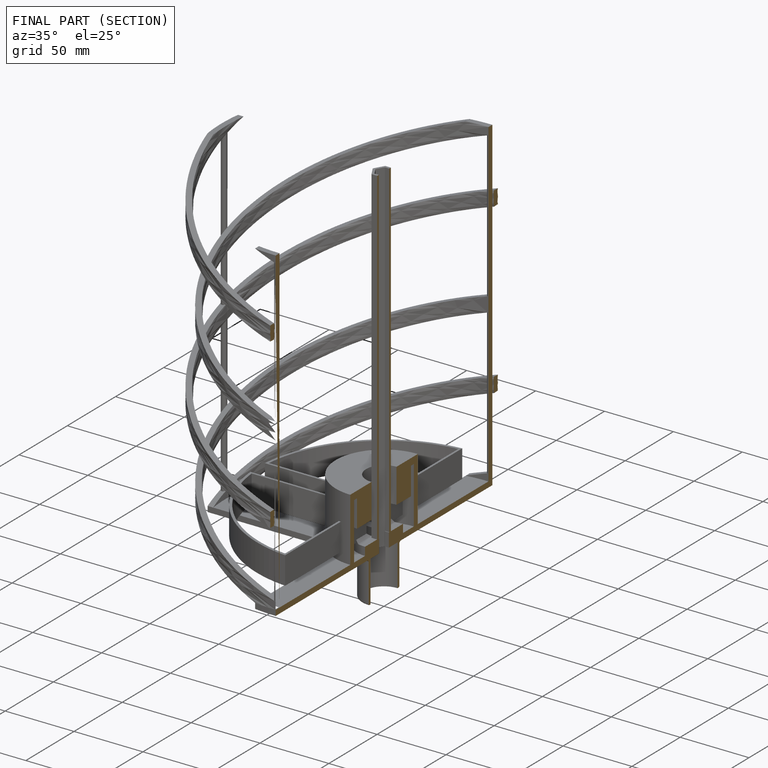
[diagram: finished part — half-section view (interior)]
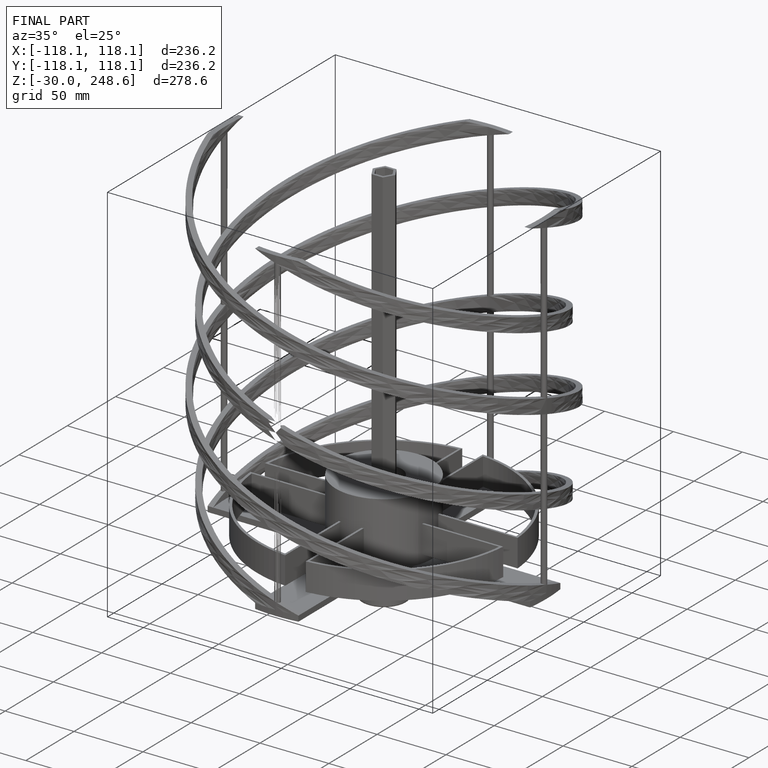
[diagram: finished part — iso view with bounding-box wireframe]
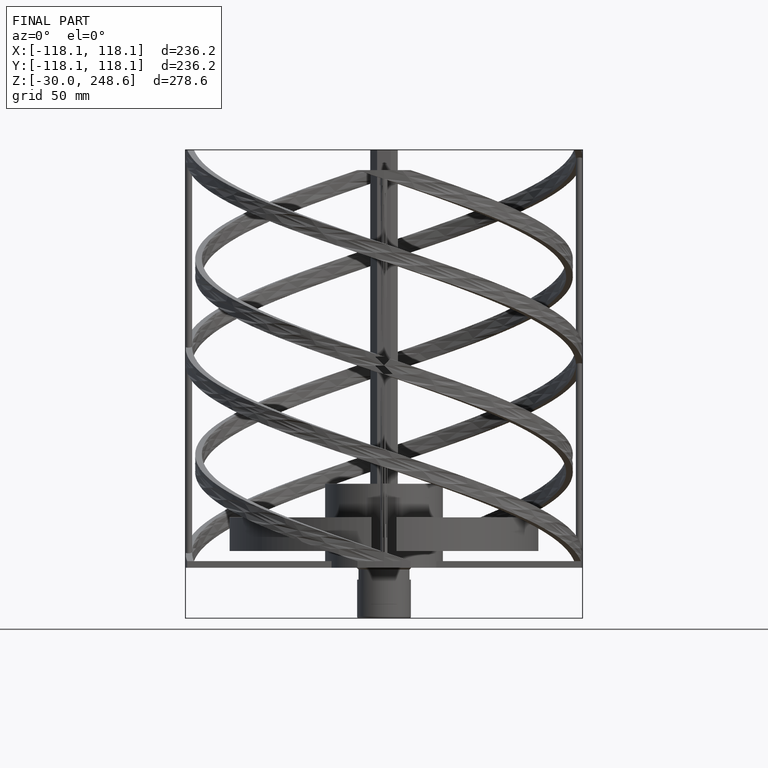
[diagram: finished part — front view with bounding-box wireframe]
